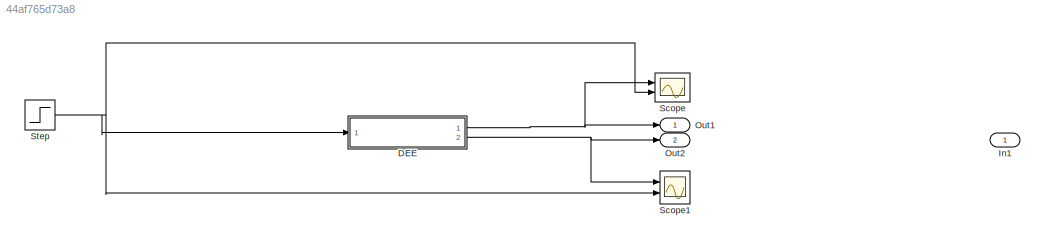
MODEL slx_44af765d73a8
KIND model
CONFIG AbsTol = auto
CONFIG EnableMultiTasking = off
CONFIG FixedStep = auto
CONFIG MaxStep = auto
CONFIG MinStep = auto
CONFIG RelTol = 1e-3
CONFIG SampleTimeConstraint = Unconstrained
CONFIG Solver = VariableStepAuto
CONFIG SolverName = VariableStepAuto
CONFIG StartTime = 0.0
CONFIG StopTime = 500
WORKSPACE source: MATLAB code (in-file)
WORKSPACE D = 52
WORKSPACE Ti = 90
WORKSPACE Cp = 0.844
WORKSPACE H = -500
WORKSPACE Cao = 0
WORKSPACE To = 0
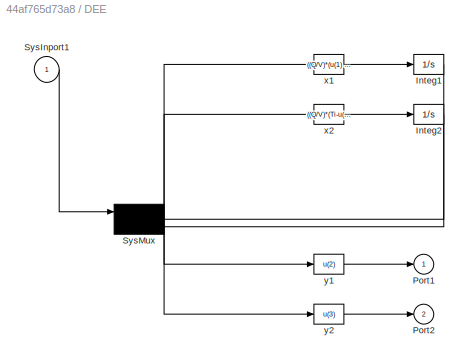
BLOCK [SubSystem] DEE
  OpenFcn = diffeqed
  Ports = [1, 2]
  RequestExecContextInheritance = off
BLOCK [Integrator] DEE/Integ1
  InitialCondition = 0.0192
  Ports = [1, 1]
BLOCK [Integrator] DEE/Integ2
  InitialCondition = 98.8950
  Ports = [1, 1]
BLOCK [Outport] DEE/Port1
  IconDisplay = Port number
BLOCK [Outport] DEE/Port2
  IconDisplay = Port number
  Port = 2
BLOCK [Inport] DEE/SysInport1
  IconDisplay = Port number
BLOCK [Mux] DEE/SysMux
  Inputs = 3
  Ports = [3, 1]
BLOCK [Fcn] DEE/x1
  Expr = ((Q/V)*(u(1) - u(2))) - (u(2)*2.4*10^15*exp(-20000/(u(3) + 459.67)))
BLOCK [Fcn] DEE/x2
  Expr = ((Q/V)*(Ti-u(3)))-((H*2.4*10^15*exp(-20000/(u(3)+459.67))*u(2))/(D*Cp))
BLOCK [Fcn] DEE/y1
  Expr = u(2)
BLOCK [Fcn] DEE/y2
  Expr = u(3)
BLOCK [Inport] In1
  IconDisplay = Port number
BLOCK [Outport] Out1
  IconDisplay = Port number
BLOCK [Outport] Out2
  IconDisplay = Port number
  Port = 2
BLOCK [Scope] Scope
  Floating = off
  NumInputPorts = 2
  Ports = [2]
  ScopeSpecificationString = Simulink.scopes.TimeScopeBlockCfg('CurrentConfiguration', extmgr.ConfigurationSet(extmgr.Configuration('Core','General UI',true),extmgr.Configuration('Core','Source UI',true),extmgr.Configuration('Sources','WiredSimulink',true),extmgr.Configuration('Visuals','Time Domain',true,'SerializedDisplays',{struct('MinYLimReal','0.018','MaxYLimReal','0.0215','YLabelReal','concentration(mol/ft3)','MinYLimMa...<+1582ch>
BLOCK [Scope] Scope1
  Floating = off
  NumInputPorts = 2
  Ports = [2]
  ScopeSpecificationString = Simulink.scopes.TimeScopeBlockCfg('CurrentConfiguration', extmgr.ConfigurationSet(extmgr.Configuration('Core','General UI',true),extmgr.Configuration('Core','Source UI',true),extmgr.Configuration('Sources','WiredSimulink',true,'DataLoggingVariableName','ScopeData1','DataLogging',true),extmgr.Configuration('Visuals','Time Domain',true,'SerializedDisplays',{struct('MinYLimReal','98.8','MaxYLimReal',...<+1581ch>
BLOCK [Step] Step
  After = 0.8*1.1
  Before = 0.8
  SampleTime = 1
  Time = 2
  VectorParams1D = off
  ZeroCross = off
LINE DEE/Integ1:1 -> DEE/SysMux:2
LINE DEE/Integ2:1 -> DEE/SysMux:3
LINE DEE/SysInport1:1 -> DEE/SysMux:1
NET DEE/SysMux:1 -> DEE/x1:1, DEE/x2:1, DEE/y1:1, DEE/y2:1
LINE DEE/x1:1 -> DEE/Integ1:1
LINE DEE/x2:1 -> DEE/Integ2:1
LINE DEE/y1:1 -> DEE/Port1:1
LINE DEE/y2:1 -> DEE/Port2:1
NET DEE:1 -> Out1:1, Scope:1
NET DEE:2 -> Out2:1, Scope1:1
NET Step:1 -> DEE:1, Scope1:2, Scope:2
note: NET lines group one-source signal fan-out (src -> all destinations, sorted); 1:1 wires keep LINE
